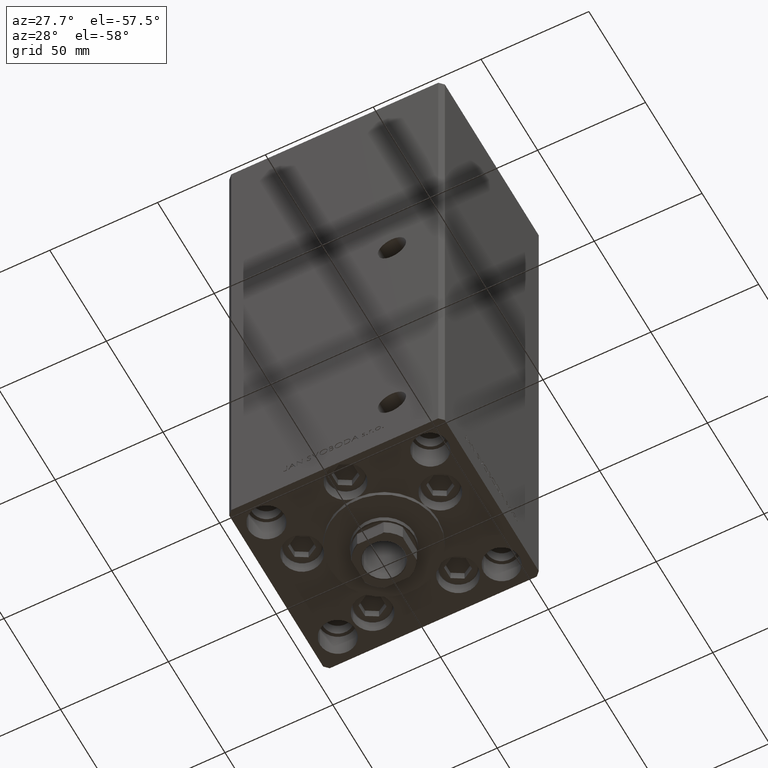
[diagram: clean part render]
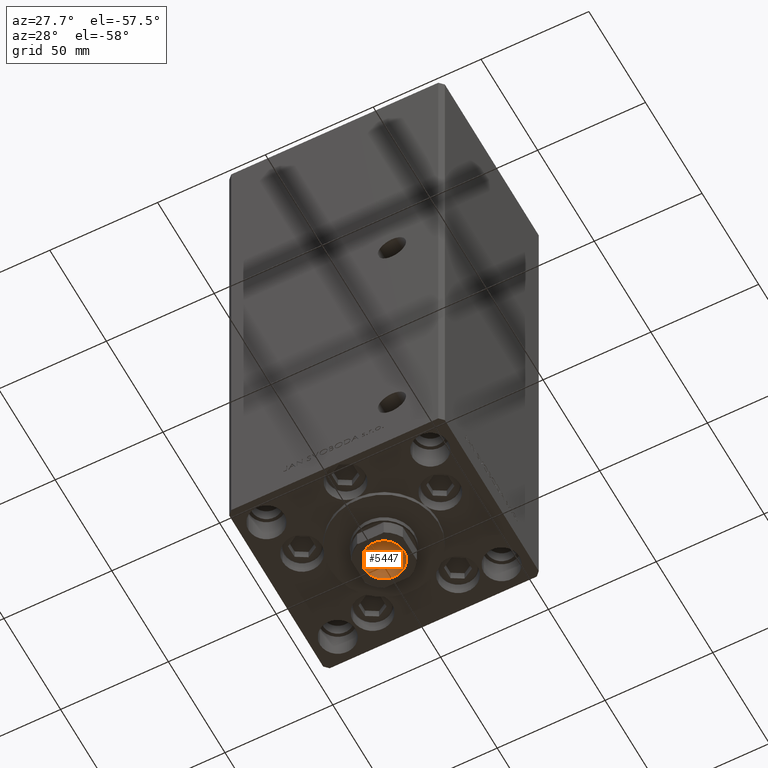
[diagram: same view with one face highlighted and labeled with its STEP entity id]
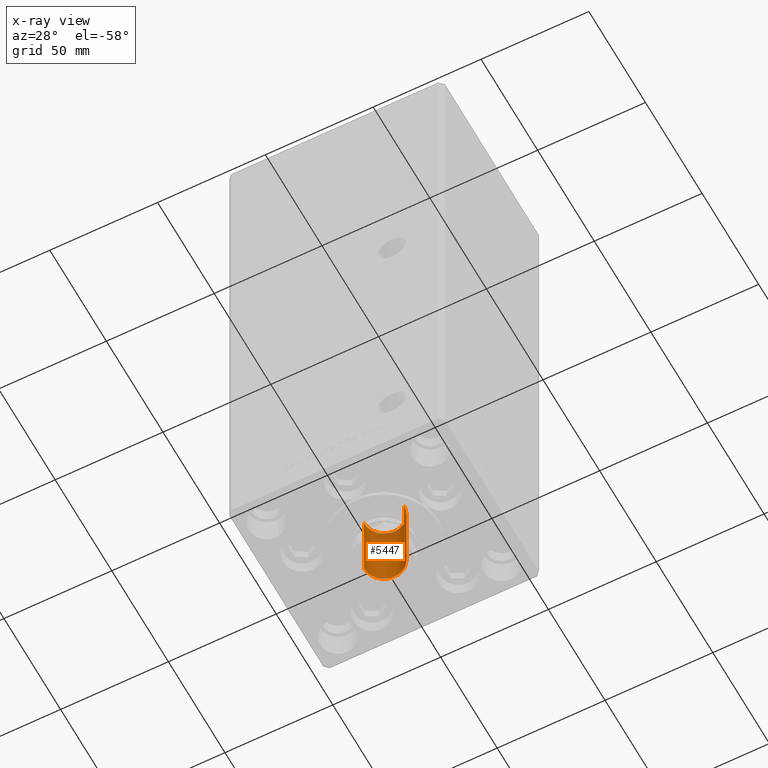
[diagram: x-ray of the same camera — body ghosted, the highlighted face saturated]
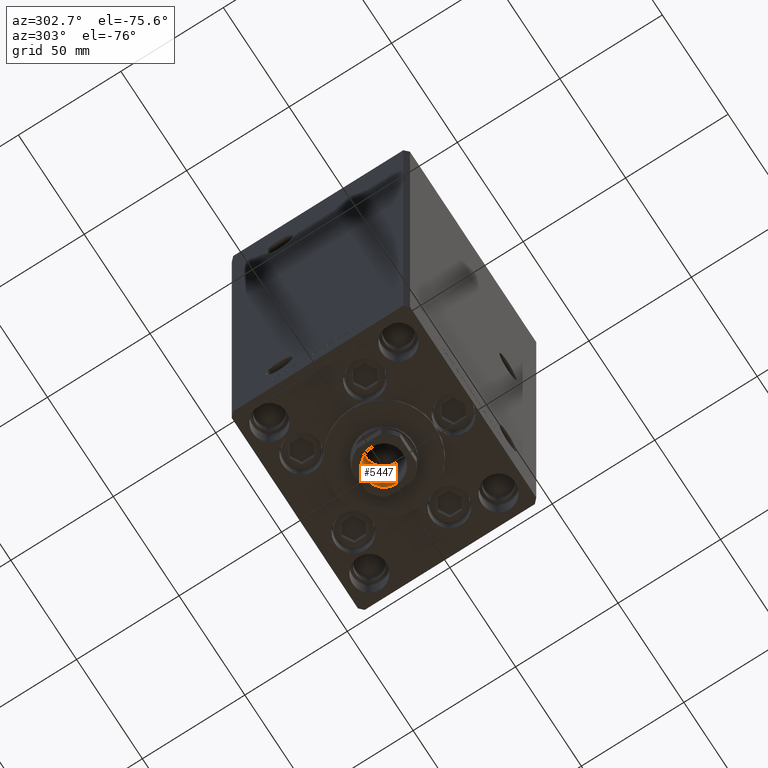
[diagram: same view with one face highlighted and labeled with its STEP entity id]
A machine part, auxiliary view. The second image highlights one B-rep face of the part: STEP entity #5447.
The next image is the same camera in x-ray: the body ghosted, the highlighted face saturated — about 7% of this face is hidden behind the body in this view.
A second angle (auxiliary view) of the same face is appended — the face is thin or edge-on in the first view.
In plain terms, the highlighted cylindrical surface (edge-blend (fillet) strip) has radius 9.25 mm, axis along (0, 0, -1).
Its self-contained STEP definition (entity closure, byte-faithful):
#519 = DIRECTION ( 'NONE',  ( -0.000000000000000000, -0.000000000000000000, 1.000000000000000000 ) ) ;
#1622 = LINE ( 'NONE', #2370, #18239 ) ;
#2370 = CARTESIAN_POINT ( 'NONE',  ( -9.249999999999996447, 1.132798289211301304E-15, 235.2500000000000284 ) ) ;
#2603 = CARTESIAN_POINT ( 'NONE',  ( 0.000000000000000000, 0.000000000000000000, 234.9499999999999886 ) ) ;
#5447 = ADVANCED_FACE ( 'NONE', ( #42679 ), #23414, .F. ) ;
#5816 = VERTEX_POINT ( 'NONE', #16009 ) ;
#6892 = DIRECTION ( 'NONE',  ( 0.000000000000000000, 0.000000000000000000, 1.000000000000000000 ) ) ;
#8185 = CARTESIAN_POINT ( 'NONE',  ( 9.249999999999996447, 0.000000000000000000, 235.2500000000000284 ) ) ;
#8617 = CARTESIAN_POINT ( 'NONE',  ( 0.000000000000000000, 0.000000000000000000, 200.2500000000000000 ) ) ;
#8678 = AXIS2_PLACEMENT_3D ( 'NONE', #2603, #6892, #10190 ) ;
#9650 = VERTEX_POINT ( 'NONE', #40231 ) ;
#10190 = DIRECTION ( 'NONE',  ( 1.000000000000000000, 0.000000000000000000, 0.000000000000000000 ) ) ;
#11849 = CIRCLE ( 'NONE', #45010, 9.249999999999994671 ) ;
#12232 = DIRECTION ( 'NONE',  ( -0.000000000000000000, -0.000000000000000000, 1.000000000000000000 ) ) ;
#12482 = LINE ( 'NONE', #8185, #48959 ) ;
#14445 = VERTEX_POINT ( 'NONE', #17478 ) ;
#14705 = ORIENTED_EDGE ( 'NONE', *, *, #42985, .F. ) ;
#16009 = CARTESIAN_POINT ( 'NONE',  ( -9.249999999999996447, 1.132798289211301304E-15, 234.9499999999999886 ) ) ;
#17043 = DIRECTION ( 'NONE',  ( -0.000000000000000000, -0.000000000000000000, 1.000000000000000000 ) ) ;
#17478 = CARTESIAN_POINT ( 'NONE',  ( -9.249999999999994671, 1.132798289211300909E-15, 200.2500000000000000 ) ) ;
#18152 = EDGE_CURVE ( 'NONE', #21703, #9650, #12482, .T. ) ;
#18239 = VECTOR ( 'NONE', #17043, 1000.000000000000000 ) ;
#18856 = DIRECTION ( 'NONE',  ( 1.000000000000000000, 0.000000000000000000, 0.000000000000000000 ) ) ;
#21703 = VERTEX_POINT ( 'NONE', #24974 ) ;
#23167 = CARTESIAN_POINT ( 'NONE',  ( 0.000000000000000000, 0.000000000000000000, 235.2500000000000284 ) ) ;
#23414 = CYLINDRICAL_SURFACE ( 'NONE', #23526, 9.249999999999996447 ) ;
#23526 = AXIS2_PLACEMENT_3D ( 'NONE', #23167, #34071, #18856 ) ;
#24974 = CARTESIAN_POINT ( 'NONE',  ( 9.249999999999994671, 0.000000000000000000, 200.2500000000000000 ) ) ;
#34071 = DIRECTION ( 'NONE',  ( -0.000000000000000000, -0.000000000000000000, 1.000000000000000000 ) ) ;
#34304 = EDGE_LOOP ( 'NONE', ( #14705, #47389, #36526, #49331 ) ) ;
#36526 = ORIENTED_EDGE ( 'NONE', *, *, #18152, .T. ) ;
#40231 = CARTESIAN_POINT ( 'NONE',  ( 9.249999999999996447, 0.000000000000000000, 234.9499999999999886 ) ) ;
#42679 = FACE_OUTER_BOUND ( 'NONE', #34304, .T. ) ;
#42985 = EDGE_CURVE ( 'NONE', #14445, #5816, #1622, .T. ) ;
#45010 = AXIS2_PLACEMENT_3D ( 'NONE', #8617, #519, #46601 ) ;
#45113 = EDGE_CURVE ( 'NONE', #21703, #14445, #11849, .T. ) ;
#46601 = DIRECTION ( 'NONE',  ( 1.000000000000000000, 0.000000000000000000, 0.000000000000000000 ) ) ;
#46822 = EDGE_CURVE ( 'NONE', #9650, #5816, #49136, .T. ) ;
#47389 = ORIENTED_EDGE ( 'NONE', *, *, #45113, .F. ) ;
#48959 = VECTOR ( 'NONE', #12232, 1000.000000000000000 ) ;
#49136 = CIRCLE ( 'NONE', #8678, 9.249999999999996447 ) ;
#49331 = ORIENTED_EDGE ( 'NONE', *, *, #46822, .T. ) ;